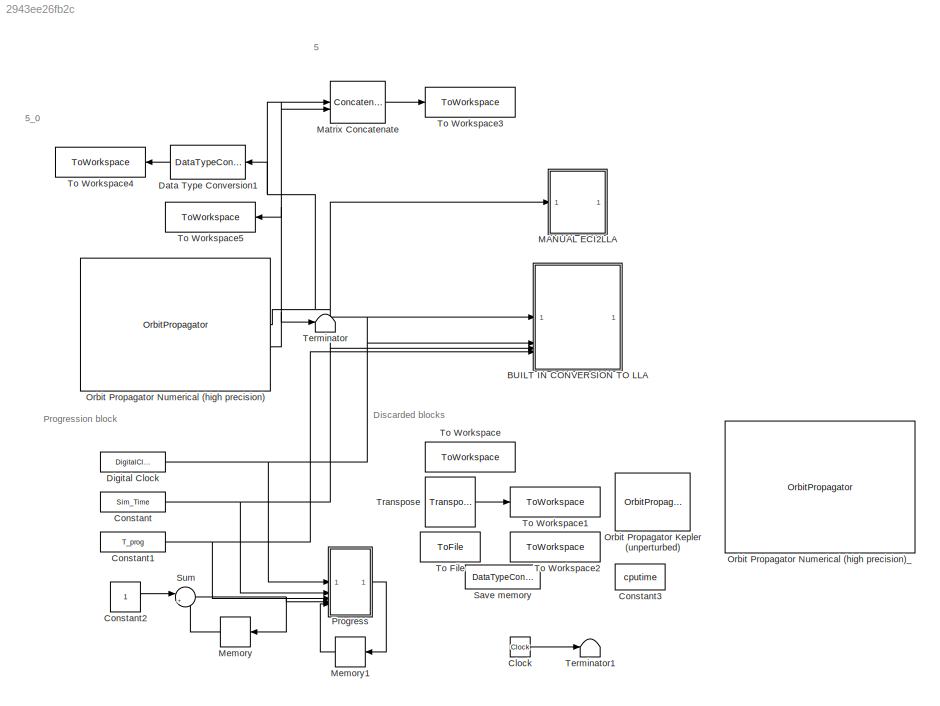
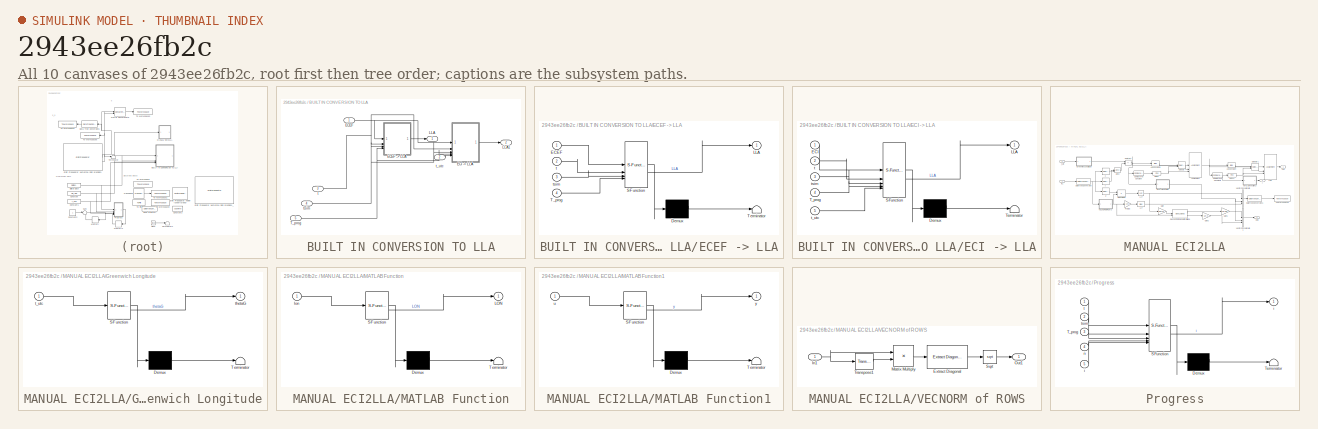
[diagram: thumbnail index - all 10 canvases of the model, root first then tree order]
MODEL slx_2943ee26fb2c
KIND model
CONFIG AbsTol = auto
CONFIG EnableMultiTasking = off
CONFIG FixedStep = SampleTime
CONFIG MaxStep = auto
CONFIG MinStep = auto
CONFIG RelTol = 1e-3
CONFIG SampleTimeConstraint = Unconstrained
CONFIG SolverName = FixedStepAuto
CONFIG StartTime = 0
CONFIG StopTime = Sim_Time
WORKSPACE source: mxarray member
WORKSPACE SampleTime = 30
WORKSPACE Sim_Time = 31556952
WORKSPACE StartTime: datetime (value not decoded)
WORKSPACE T_prog = 3180
WORKSPACE r = [-2469229.65152 6490845.12474 5652.81038738]
WORKSPACE v = [964.527698889 350.048914206 7509.28560598]
BLOCK [SubSystem] BUILT IN CONVERSION TO LLA
  Commented = on
BLOCK [Inport] BUILT IN CONVERSION TO LLA/ECEF
BLOCK [SubSystem] BUILT IN CONVERSION TO LLA/ECEF -> LLA
  Commented = on
  ErrorFcn = Stateflow.Translate.translate
  LibrarySourceBlock = simulink/User-Defined\nFunctions/MATLAB Function
  PermitHierarchicalResolution = ExplicitOnly
  SFBlockType = MATLAB Function
  TreatAsAtomicUnit = on
BLOCK [Demux] BUILT IN CONVERSION TO LLA/ECEF -> LLA/ Demux 
  Outputs = 1
BLOCK [S-Function] BUILT IN CONVERSION TO LLA/ECEF -> LLA/ SFunction 
  EnableBusSupport = on
  FunctionName = sf_sfun
  PortCounts = [4 2]
  SFcnIsStateOwnerBlock = off
  SFunctionDeploymentMode = off
  Tag = Stateflow S-Function 3
BLOCK [Terminator] BUILT IN CONVERSION TO LLA/ECEF -> LLA/ Terminator 
BLOCK [Inport] BUILT IN CONVERSION TO LLA/ECEF -> LLA/ECEF
BLOCK [Outport] BUILT IN CONVERSION TO LLA/ECEF -> LLA/LLA
BLOCK [Inport] BUILT IN CONVERSION TO LLA/ECEF -> LLA/T_prog
  Port = 4
BLOCK [Inport] BUILT IN CONVERSION TO LLA/ECEF -> LLA/t
  Port = 2
BLOCK [Inport] BUILT IN CONVERSION TO LLA/ECEF -> LLA/tsim
  Port = 3
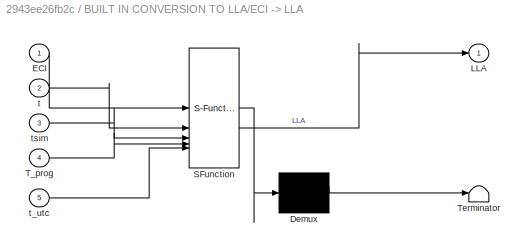
BLOCK [SubSystem] BUILT IN CONVERSION TO LLA/ECI -> LLA
  Commented = on
  ErrorFcn = Stateflow.Translate.translate
  LibrarySourceBlock = simulink/User-Defined\nFunctions/MATLAB Function
  PermitHierarchicalResolution = ExplicitOnly
  SFBlockType = MATLAB Function
  TreatAsAtomicUnit = on
BLOCK [Demux] BUILT IN CONVERSION TO LLA/ECI -> LLA/ Demux 
  Outputs = 1
BLOCK [S-Function] BUILT IN CONVERSION TO LLA/ECI -> LLA/ SFunction 
  EnableBusSupport = on
  FunctionName = sf_sfun
  PortCounts = [5 2]
  SFcnIsStateOwnerBlock = off
  SFunctionDeploymentMode = off
  Tag = Stateflow S-Function 1
BLOCK [Terminator] BUILT IN CONVERSION TO LLA/ECI -> LLA/ Terminator 
BLOCK [Inport] BUILT IN CONVERSION TO LLA/ECI -> LLA/ECI
BLOCK [Outport] BUILT IN CONVERSION TO LLA/ECI -> LLA/LLA
BLOCK [Inport] BUILT IN CONVERSION TO LLA/ECI -> LLA/T_prog
  Port = 4
BLOCK [Inport] BUILT IN CONVERSION TO LLA/ECI -> LLA/t
  Port = 2
BLOCK [Inport] BUILT IN CONVERSION TO LLA/ECI -> LLA/t_utc
  Port = 5
BLOCK [Inport] BUILT IN CONVERSION TO LLA/ECI -> LLA/tsim
  Port = 3
BLOCK [Outport] BUILT IN CONVERSION TO LLA/LLA
BLOCK [Outport] BUILT IN CONVERSION TO LLA/LLA1
  Port = 2
BLOCK [Inport] BUILT IN CONVERSION TO LLA/T_prog
  Port = 5
BLOCK [Inport] BUILT IN CONVERSION TO LLA/t
  Port = 3
BLOCK [Inport] BUILT IN CONVERSION TO LLA/t_utc
  Port = 2
BLOCK [Inport] BUILT IN CONVERSION TO LLA/tsim
  Port = 4
BLOCK [Clock] Clock
  Commented = on
BLOCK [Constant] Constant
  Value = Sim_Time
BLOCK [Constant] Constant1
  Value = T_prog
BLOCK [Constant] Constant2
BLOCK [Constant] Constant3
  Commented = on
  Value = cputime
BLOCK [DataTypeConversion] Data Type Conversion1
  OutDataTypeStr = single
  RndMeth = Round
  SaturateOnIntegerOverflow = off
BLOCK [DigitalClock] Digital Clock
  SampleTime = T_prog
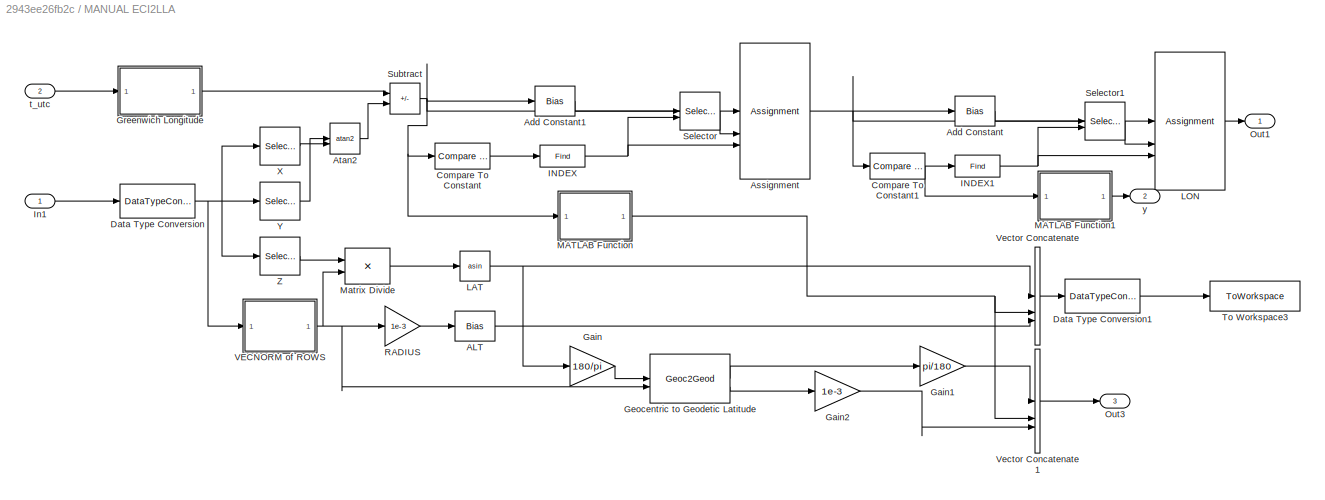
BLOCK [SubSystem] MANUAL ECI2LLA
  Commented = on
BLOCK [Bias] MANUAL ECI2LLA/ALT
  Bias = -6371
  Commented = on
  SaturateOnIntegerOverflow = off
BLOCK [Bias] MANUAL ECI2LLA/Add Constant
  Bias = 2*pi
  Commented = on
  SaturateOnIntegerOverflow = off
BLOCK [Bias] MANUAL ECI2LLA/Add Constant1
  Bias = -2*pi
  Commented = on
  SaturateOnIntegerOverflow = off
BLOCK [Assignment] MANUAL ECI2LLA/Assignment
  Commented = on
  DiagnosticForDimensions = Warning
  IndexOptions = Index vector (port)
  Indices = 1
  OutputSizes = 1
  RuntimeRangeChecks = on
BLOCK [Trigonometry] MANUAL ECI2LLA/Atan2
  Commented = on
  Operator = atan2
BLOCK [Reference] MANUAL ECI2LLA/Compare To Constant  REF=simulink/Logic and Bit
Operations/Compare
To Constant
  Commented = on
  SourceBlock = simulink/Logic and Bit\nOperations/Compare\nTo Constant
  SourceType = Compare To Constant
BLOCK [Reference] MANUAL ECI2LLA/Compare To Constant1  REF=simulink/Logic and Bit
Operations/Compare
To Constant
  Commented = on
  SourceBlock = simulink/Logic and Bit\nOperations/Compare\nTo Constant
  SourceType = Compare To Constant
BLOCK [DataTypeConversion] MANUAL ECI2LLA/Data Type Conversion
  Commented = on
  OutDataTypeStr = single
  RndMeth = Round
  SaturateOnIntegerOverflow = off
BLOCK [DataTypeConversion] MANUAL ECI2LLA/Data Type Conversion1
  Commented = on
  OutDataTypeStr = single
  RndMeth = Floor
  SaturateOnIntegerOverflow = off
BLOCK [Gain] MANUAL ECI2LLA/Gain
  Commented = on
  Gain = 180/pi
BLOCK [Gain] MANUAL ECI2LLA/Gain1
  Commented = on
  Gain = pi/180
BLOCK [Gain] MANUAL ECI2LLA/Gain2
  Commented = on
  Gain = 1e-3
BLOCK [Geoc2Geod] MANUAL ECI2LLA/Geocentric to Geodetic Latitude
  Commented = on
  outputAltitude = on
BLOCK [SubSystem] MANUAL ECI2LLA/Greenwich Longitude
  Commented = on
  ErrorFcn = Stateflow.Translate.translate
  LibrarySourceBlock = simulink/User-Defined\nFunctions/MATLAB Function
  PermitHierarchicalResolution = ExplicitOnly
  SFBlockType = MATLAB Function
  TreatAsAtomicUnit = on
BLOCK [Demux] MANUAL ECI2LLA/Greenwich Longitude/ Demux 
  Outputs = 1
BLOCK [S-Function] MANUAL ECI2LLA/Greenwich Longitude/ SFunction 
  EnableBusSupport = on
  FunctionName = sf_sfun
  PortCounts = [1 2]
  SFcnIsStateOwnerBlock = off
  SFunctionDeploymentMode = off
  Tag = Stateflow S-Function 4
BLOCK [Terminator] MANUAL ECI2LLA/Greenwich Longitude/ Terminator 
BLOCK [Inport] MANUAL ECI2LLA/Greenwich Longitude/t_utc
BLOCK [Outport] MANUAL ECI2LLA/Greenwich Longitude/thetaG
BLOCK [Find] MANUAL ECI2LLA/INDEX
  Commented = on
  NumberOfInputDimensions = 1
BLOCK [Find] MANUAL ECI2LLA/INDEX1
  Commented = on
  NumberOfInputDimensions = 1
BLOCK [Inport] MANUAL ECI2LLA/In1
BLOCK [Trigonometry] MANUAL ECI2LLA/LAT
  Commented = on
  Operator = asin
BLOCK [Assignment] MANUAL ECI2LLA/LON
  Commented = on
  DiagnosticForDimensions = Warning
  IndexOptions = Index vector (port)
  Indices = 1
  OutputSizes = 1
  RuntimeRangeChecks = on
BLOCK [SubSystem] MANUAL ECI2LLA/MATLAB Function
  Commented = on
  ErrorFcn = Stateflow.Translate.translate
  LibrarySourceBlock = simulink/User-Defined\nFunctions/MATLAB Function
  PermitHierarchicalResolution = ExplicitOnly
  SFBlockType = MATLAB Function
  TreatAsAtomicUnit = on
BLOCK [Demux] MANUAL ECI2LLA/MATLAB Function/ Demux 
  Outputs = 1
BLOCK [S-Function] MANUAL ECI2LLA/MATLAB Function/ SFunction 
  EnableBusSupport = on
  FunctionName = sf_sfun
  PortCounts = [1 2]
  SFcnIsStateOwnerBlock = off
  SFunctionDeploymentMode = off
  Tag = Stateflow S-Function 5
BLOCK [Terminator] MANUAL ECI2LLA/MATLAB Function/ Terminator 
BLOCK [Outport] MANUAL ECI2LLA/MATLAB Function/LON
BLOCK [Inport] MANUAL ECI2LLA/MATLAB Function/lon
BLOCK [SubSystem] MANUAL ECI2LLA/MATLAB Function1
  Commented = on
  ErrorFcn = Stateflow.Translate.translate
  LibrarySourceBlock = simulink/User-Defined\nFunctions/MATLAB Function
  PermitHierarchicalResolution = ExplicitOnly
  SFBlockType = MATLAB Function
  TreatAsAtomicUnit = on
BLOCK [Demux] MANUAL ECI2LLA/MATLAB Function1/ Demux 
  Outputs = 1
BLOCK [S-Function] MANUAL ECI2LLA/MATLAB Function1/ SFunction 
  EnableBusSupport = on
  FunctionName = sf_sfun
  PortCounts = [1 2]
  SFcnIsStateOwnerBlock = off
  SFunctionDeploymentMode = off
  Tag = Stateflow S-Function 6
BLOCK [Terminator] MANUAL ECI2LLA/MATLAB Function1/ Terminator 
BLOCK [Inport] MANUAL ECI2LLA/MATLAB Function1/u
BLOCK [Outport] MANUAL ECI2LLA/MATLAB Function1/y
BLOCK [Product] MANUAL ECI2LLA/Matrix Divide
  Commented = on
  Inputs = */
BLOCK [Outport] MANUAL ECI2LLA/Out1
BLOCK [Outport] MANUAL ECI2LLA/Out3
  Port = 3
BLOCK [Gain] MANUAL ECI2LLA/RADIUS
  Commented = on
  Gain = 1e-3
BLOCK [Selector] MANUAL ECI2LLA/Selector
  Commented = on
  IndexOptions = Index vector (port)
  Indices = [1 3]
  OutputSizes = 1
  RuntimeRangeChecks = on
BLOCK [Selector] MANUAL ECI2LLA/Selector1
  Commented = on
  IndexOptions = Index vector (port)
  Indices = [1 3]
  OutputSizes = 1
  RuntimeRangeChecks = on
BLOCK [Sum] MANUAL ECI2LLA/Subtract
  Commented = on
  IconShape = rectangular
  Inputs = -+
BLOCK [ToWorkspace] MANUAL ECI2LLA/To Workspace3
  Commented = on
  FixptAsFi = on
  MaxDataPoints = inf
  SampleTime = -1
  SaveFormat = Timeseries
  VariableName = LLA
BLOCK [SubSystem] MANUAL ECI2LLA/VECNORM of ROWS
  Commented = on
BLOCK [Reference] MANUAL ECI2LLA/VECNORM of ROWS/Extract Diagonal  REF=matrix_library/Extract Diagonal
  LibrarySourceBlock = simulink/Matrix\nOperations/Extract Diagonal
  SourceBlock = matrix_library/Extract Diagonal
  SourceType = Extract Diagonal
BLOCK [Inport] MANUAL ECI2LLA/VECNORM of ROWS/In1
BLOCK [Product] MANUAL ECI2LLA/VECNORM of ROWS/Matrix Multiply
  Multiplication = Matrix(*)
BLOCK [Outport] MANUAL ECI2LLA/VECNORM of ROWS/Out1
BLOCK [Sqrt] MANUAL ECI2LLA/VECNORM of ROWS/Sqrt
BLOCK [Reference] MANUAL ECI2LLA/VECNORM of ROWS/Transpose1  REF=matrix_library/Transpose
  LibrarySourceBlock = simulink/Matrix\nOperations/Transpose
  SourceBlock = matrix_library/Transpose
  SourceType = Transpose
BLOCK [Concatenate] MANUAL ECI2LLA/Vector Concatenate
  Commented = on
  ConcatenateDimension = 2
  Mode = Multidimensional array
  NumInputs = 3
BLOCK [Concatenate] MANUAL ECI2LLA/Vector Concatenate1
  Commented = on
  ConcatenateDimension = 2
  Mode = Multidimensional array
  NumInputs = 3
BLOCK [Selector] MANUAL ECI2LLA/X
  Commented = on
  IndexOptions = Select all,Index vector (dialog)
  Indices = [1 3],1
  InputPortWidth = 3
  NumberOfDimensions = 2
  OutputSizes = 1,1
  RuntimeRangeChecks = on
BLOCK [Selector] MANUAL ECI2LLA/Y
  Commented = on
  IndexOptions = Select all,Index vector (dialog)
  Indices = [1 3],2
  InputPortWidth = 3
  NumberOfDimensions = 2
  OutputSizes = 1,1
  RuntimeRangeChecks = on
BLOCK [Selector] MANUAL ECI2LLA/Z
  Commented = on
  IndexOptions = Select all,Index vector (dialog)
  Indices = [1 3],3
  InputPortWidth = 3
  NumberOfDimensions = 2
  OutputSizes = 1,1
  RuntimeRangeChecks = on
BLOCK [Inport] MANUAL ECI2LLA/t_utc
  Port = 2
BLOCK [Outport] MANUAL ECI2LLA/y
  Port = 2
BLOCK [Concatenate] Matrix Concatenate
  Commented = on
  ConcatenateDimension = 2
  Mode = Multidimensional array
BLOCK [Memory] Memory
BLOCK [Memory] Memory1
BLOCK [OrbitPropagator] Orbit Propagator Kepler (unperturbed)
  Commented = on
  customJ2 = 1.0826269e-03
  customMu = 4.305e13
  customOmega = 4.06125949e-3
  customR = 3396200
  fixedPosition = [-4142689.0 -2676864.7 -4669861.6]
  fixedVelocity = [1452.7 -6720.7 2568.1]
  inertialPosition = r
  inertialVelocity = v
  startDate = datevec(StartTime)
  stateFormatKep = ICRF state vector
  timeFormat = Gregorian
BLOCK [OrbitPropagator] Orbit Propagator Numerical (high precision)
  customJ2 = 1.0826269e-03
  customMu = 4.305e13
  customOmega = 4.06125949e-3
  customR = 3396200
  dateOut = off
  fixedPosition = r
  fixedVelocity = v
  gravityModel = Point-mass
  inertialPosition = r(:,:,1)
  inertialVelocity = v(:,:,1)
  outportFrame = Fixed-frame
  propagator = Numerical (high precision)
  startDate = datevec(StartTime)
  stateFormatKep = ICRF state vector
  stateFormatNum = ICRF state vector
  timeFormat = Gregorian
  useEOPs = off
BLOCK [OrbitPropagator] Orbit Propagator Numerical (high precision)_
  Commented = on
  customJ2 = 1.0826269e-03
  customMu = 4.305e13
  customOmega = 4.06125949e-3
  customR = 3396200
  fixedPosition = r
  fixedVelocity = v
  gravityModel = Point-mass
  inertialPosition = R
  inertialVelocity = V
  outportFrame = Fixed-frame
  propagator = Numerical (high precision)
  startDate = t_UTC(k - 1,:)
  stateFormatKep = ICRF state vector
  stateFormatNum = ICRF state vector
  timeFormat = Gregorian
  useEOPs = off
BLOCK [SubSystem] Progress
  ErrorFcn = Stateflow.Translate.translate
  LibrarySourceBlock = simulink/User-Defined\nFunctions/MATLAB Function
  PermitHierarchicalResolution = ExplicitOnly
  SFBlockType = MATLAB Function
  TreatAsAtomicUnit = on
BLOCK [Demux] Progress/ Demux 
  Outputs = 1
BLOCK [S-Function] Progress/ SFunction 
  EnableBusSupport = on
  FunctionName = sf_sfun
  PortCounts = [5 2]
  SFcnIsStateOwnerBlock = off
  SFunctionDeploymentMode = off
  Tag = Stateflow S-Function 2
BLOCK [Terminator] Progress/ Terminator 
BLOCK [Inport] Progress/T_prog
  Port = 3
BLOCK [Outport] Progress/i
BLOCK [Inport] Progress/i 
  Port = 5
BLOCK [Inport] Progress/n
  Port = 4
BLOCK [Inport] Progress/t
BLOCK [Inport] Progress/tsim
  Port = 2
BLOCK [DataTypeConversion] Save memory
  Commented = on
  OutDataTypeStr = single
  RndMeth = Round
  SaturateOnIntegerOverflow = off
BLOCK [Sum] Sum
  Inputs = |++
BLOCK [Terminator] Terminator
BLOCK [Terminator] Terminator1
  Commented = on
BLOCK [ToFile] To File
  Commented = on
  Filename = LLA.mat
  MatrixName = LLA
  SaveFormat = Timeseries
BLOCK [ToWorkspace] To Workspace
  Commented = on
  FixptAsFi = on
  MaxDataPoints = inf
  SampleTime = -1
  VariableName = ECEF
BLOCK [ToWorkspace] To Workspace1
  Commented = on
  FixptAsFi = on
  MaxDataPoints = inf
  SampleTime = -1
  Save2DSignal = 2-D array (concatenate along first dimension)
  VariableName = Time
BLOCK [ToWorkspace] To Workspace2
  Commented = on
  FixptAsFi = on
  MaxDataPoints = inf
  SampleTime = -1
  VariableName = LLA
BLOCK [ToWorkspace] To Workspace3
  Commented = on
  FixptAsFi = on
  MaxDataPoints = inf
  SampleTime = -1
  VariableName = ECI
BLOCK [ToWorkspace] To Workspace4
  FixptAsFi = on
  MaxDataPoints = inf
  SampleTime = -1
  VariableName = ECI
BLOCK [ToWorkspace] To Workspace5
  Commented = on
  FixptAsFi = on
  MaxDataPoints = inf
  SampleTime = -1
  SaveFormat = Timeseries
  VariableName = V
BLOCK [Reference] Transpose  REF=matrix_library/Transpose
  Commented = on
  LibrarySourceBlock = simulink/Matrix\nOperations/Transpose
  SourceBlock = matrix_library/Transpose
  SourceType = Transpose
ANNOTATION (root): 5
ANNOTATION (root): 5_0
ANNOTATION (root): Discarded blocks
ANNOTATION (root): Progression block
LINE BUILT IN CONVERSION TO LLA/ECEF -> LLA:1 -> BUILT IN CONVERSION TO LLA/LLA:1
NET BUILT IN CONVERSION TO LLA/ECEF:1 -> BUILT IN CONVERSION TO LLA/ECEF -> LLA:1, BUILT IN CONVERSION TO LLA/ECI -> LLA:1
LINE BUILT IN CONVERSION TO LLA/ECI -> LLA:1 -> BUILT IN CONVERSION TO LLA/LLA1:1
NET BUILT IN CONVERSION TO LLA/T_prog:1 -> BUILT IN CONVERSION TO LLA/ECEF -> LLA:4, BUILT IN CONVERSION TO LLA/ECI -> LLA:4
NET BUILT IN CONVERSION TO LLA/t:1 -> BUILT IN CONVERSION TO LLA/ECEF -> LLA:2, BUILT IN CONVERSION TO LLA/ECI -> LLA:2
LINE BUILT IN CONVERSION TO LLA/t_utc:1 -> BUILT IN CONVERSION TO LLA/ECI -> LLA:5
NET BUILT IN CONVERSION TO LLA/tsim:1 -> BUILT IN CONVERSION TO LLA/ECEF -> LLA:3, BUILT IN CONVERSION TO LLA/ECI -> LLA:3
LINE Clock:1 -> Terminator1:1
NET Constant1:1 -> BUILT IN CONVERSION TO LLA:5, Progress:3
LINE Constant2:1 -> Sum:1
NET Constant:1 -> BUILT IN CONVERSION TO LLA:4, Progress:2
LINE Data Type Conversion1:1 -> To Workspace4:1
NET Digital Clock:1 -> BUILT IN CONVERSION TO LLA:3, Progress:1
LINE MANUAL ECI2LLA/ALT:1 -> MANUAL ECI2LLA/Vector Concatenate:3
LINE MANUAL ECI2LLA/Add Constant1:1 -> MANUAL ECI2LLA/Selector:1
LINE MANUAL ECI2LLA/Add Constant:1 -> MANUAL ECI2LLA/Selector1:1
NET MANUAL ECI2LLA/Assignment:1 -> MANUAL ECI2LLA/Add Constant:1, MANUAL ECI2LLA/Compare To Constant1:1, MANUAL ECI2LLA/LON:1
LINE MANUAL ECI2LLA/Atan2:1 -> MANUAL ECI2LLA/Subtract:2
NET MANUAL ECI2LLA/Compare To Constant1:1 -> MANUAL ECI2LLA/INDEX1:1, MANUAL ECI2LLA/MATLAB Function1:1
LINE MANUAL ECI2LLA/Compare To Constant:1 -> MANUAL ECI2LLA/INDEX:1
LINE MANUAL ECI2LLA/Data Type Conversion1:1 -> MANUAL ECI2LLA/To Workspace3:1
NET MANUAL ECI2LLA/Data Type Conversion:1 -> MANUAL ECI2LLA/VECNORM of ROWS:1, MANUAL ECI2LLA/X:1, MANUAL ECI2LLA/Y:1, MANUAL ECI2LLA/Z:1
LINE MANUAL ECI2LLA/Gain1:1 -> MANUAL ECI2LLA/Vector Concatenate1:1
LINE MANUAL ECI2LLA/Gain2:1 -> MANUAL ECI2LLA/Vector Concatenate1:3
LINE MANUAL ECI2LLA/Gain:1 -> MANUAL ECI2LLA/Geocentric to Geodetic Latitude:1
LINE MANUAL ECI2LLA/Geocentric to Geodetic Latitude:1 -> MANUAL ECI2LLA/Gain1:1
LINE MANUAL ECI2LLA/Geocentric to Geodetic Latitude:2 -> MANUAL ECI2LLA/Gain2:1
LINE MANUAL ECI2LLA/Greenwich Longitude:1 -> MANUAL ECI2LLA/Subtract:1
NET MANUAL ECI2LLA/INDEX1:1 -> MANUAL ECI2LLA/LON:3, MANUAL ECI2LLA/Selector1:2
NET MANUAL ECI2LLA/INDEX:1 -> MANUAL ECI2LLA/Assignment:3, MANUAL ECI2LLA/Selector:2
LINE MANUAL ECI2LLA/In1:1 -> MANUAL ECI2LLA/Data Type Conversion:1
NET MANUAL ECI2LLA/LAT:1 -> MANUAL ECI2LLA/Gain:1, MANUAL ECI2LLA/Vector Concatenate:1
LINE MANUAL ECI2LLA/LON:1 -> MANUAL ECI2LLA/Out1:1
LINE MANUAL ECI2LLA/MATLAB Function1:1 -> MANUAL ECI2LLA/y:1
NET MANUAL ECI2LLA/MATLAB Function:1 -> MANUAL ECI2LLA/Vector Concatenate1:2, MANUAL ECI2LLA/Vector Concatenate:2
LINE MANUAL ECI2LLA/Matrix Divide:1 -> MANUAL ECI2LLA/LAT:1
LINE MANUAL ECI2LLA/RADIUS:1 -> MANUAL ECI2LLA/ALT:1
LINE MANUAL ECI2LLA/Selector1:1 -> MANUAL ECI2LLA/LON:2
LINE MANUAL ECI2LLA/Selector:1 -> MANUAL ECI2LLA/Assignment:2
NET MANUAL ECI2LLA/Subtract:1 -> MANUAL ECI2LLA/Add Constant1:1, MANUAL ECI2LLA/Assignment:1, MANUAL ECI2LLA/Compare To Constant:1, MANUAL ECI2LLA/MATLAB Function:1
LINE MANUAL ECI2LLA/VECNORM of ROWS/Extract Diagonal:1 -> MANUAL ECI2LLA/VECNORM of ROWS/Sqrt:1
NET MANUAL ECI2LLA/VECNORM of ROWS/In1:1 -> MANUAL ECI2LLA/VECNORM of ROWS/Matrix Multiply:1, MANUAL ECI2LLA/VECNORM of ROWS/Transpose1:1
LINE MANUAL ECI2LLA/VECNORM of ROWS/Matrix Multiply:1 -> MANUAL ECI2LLA/VECNORM of ROWS/Extract Diagonal:1
LINE MANUAL ECI2LLA/VECNORM of ROWS/Sqrt:1 -> MANUAL ECI2LLA/VECNORM of ROWS/Out1:1
LINE MANUAL ECI2LLA/VECNORM of ROWS/Transpose1:1 -> MANUAL ECI2LLA/VECNORM of ROWS/Matrix Multiply:2
NET MANUAL ECI2LLA/VECNORM of ROWS:1 -> MANUAL ECI2LLA/Geocentric to Geodetic Latitude:2, MANUAL ECI2LLA/Matrix Divide:2, MANUAL ECI2LLA/RADIUS:1
LINE MANUAL ECI2LLA/Vector Concatenate1:1 -> MANUAL ECI2LLA/Out3:1
LINE MANUAL ECI2LLA/Vector Concatenate:1 -> MANUAL ECI2LLA/Data Type Conversion1:1
LINE MANUAL ECI2LLA/X:1 -> MANUAL ECI2LLA/Atan2:2
LINE MANUAL ECI2LLA/Y:1 -> MANUAL ECI2LLA/Atan2:1
LINE MANUAL ECI2LLA/Z:1 -> MANUAL ECI2LLA/Matrix Divide:1
LINE MANUAL ECI2LLA/t_utc:1 -> MANUAL ECI2LLA/Greenwich Longitude:1
LINE Matrix Concatenate:1 -> To Workspace3:1
LINE Memory1:1 -> Progress:5
LINE Memory:1 -> Sum:2
NET Orbit Propagator Numerical (high precision):1 -> BUILT IN CONVERSION TO LLA:1, Data Type Conversion1:1, MANUAL ECI2LLA:1, Matrix Concatenate:1
NET Orbit Propagator Numerical (high precision):2 -> Matrix Concatenate:2, Terminator:1, To Workspace5:1
LINE Progress:1 -> Memory1:1
NET Sum:1 -> Memory:1, Progress:4
LINE Transpose:1 -> To Workspace1:1
note: NET lines group one-source signal fan-out (src -> all destinations, sorted); 1:1 wires keep LINE
CHART BUILT IN CONVERSION TO LLA/ECI -> LLA states=1 transitions=1
  STATE_LABEL 'eML_blk_kernel()'
  STATE_LABEL "SCRIPT:\nfunction LLA = postproc(ECI,t,tsim,T_prog,t_utc)\ncoder.extrinsic('eci2lla','fprintf')\n\n% fprintf('\\n%.0f %.0f; %.0f %.0f\\n',size(ECI),size(t_utc'))\nsz = size(ECI,2);\nif sz == 1\n    LLA = single(zeros(size(ECI'))); % Define the output type for the extrinsic call.\n    LLA = single(eci2lla(ECI',t_utc')); % [deg,deg, m]\n    \n%     fprintf('\\nyoo\\n')\nelse\n    sz = size(ECI,1);\n    t_UTC = zeros...<+586ch>"
CHART Progress states=1 transitions=1
  STATE_LABEL 'eML_blk_kernel()'
  STATE_LABEL "SCRIPT:\nfunction i = prog(t,tsim,T_prog,n,i)\ncoder.extrinsic('fprintf')\n\npersistent firstTime\n\nif isempty(firstTime)\n    firstTime = false;\n    fprintf(' Simulation progress:         ')\nend\n\nprog = 100*t/tsim;\n\nif i == 0 || abs(i - n) > T_prog\n    i = n;\n    fprintf('<path>%7.3f%%',prog)\nend\n\n% if tsim - t < T_prog\n%     fprintf('<path>%7.3f%%',100)\n% end\n\nend"
CHART BUILT IN CONVERSION TO LLA/ECEF -> LLA states=1 transitions=1
  STATE_LABEL 'eML_blk_kernel()'
  STATE_LABEL "SCRIPT:\nfunction LLA = postproc(ECEF,t,tsim,T_prog)\ncoder.extrinsic('ecef2lla','fprintf')\n\nsz = size(ECEF,2);\nif sz == 1\n    LLA = single(zeros(size(ECEF'))); % Define the output type for the extrinsic call.\n    LLA = single(ecef2lla(ECEF','wgs84')); % [deg,deg, m]\n    \nelse\n    LLA = single(zeros(size(ECEF))); % Define the output type for the extrinsic call.\n    LLA = single(ecef2lla(ECEF,'wgs84'...<+426ch>"
CHART MANUAL ECI2LLA/Greenwich Longitude states=1 transitions=1
  STATE_LABEL 'eML_blk_kernel()'
  STATE_LABEL 'SCRIPT:\nfunction thetaG = LongG(t_utc)\n% Long Greenwhich at t0\n% INPUT:\n%   t_utc0 : 1x6 initial time vector [YY,MM,DD,hh,mm,ss]\n% OUTPUT:\n%   tG0    : scalar, [rad]  \n\nJ0 = 367*t_utc(1)-fix(7/4*(t_utc(1)+fix((t_utc(2)+9)/12)))+fix(275/9*t_utc(2))+t_utc(3)+1721013.5;\nT0 = (J0-2451545)/36525;\nlonG0 = mod(100.4606184 + 36000.77004 * T0 + 0.000387933 * T0^2 - 2.583e-8 * T0^3,360); % [deg]\nlonG  = mod...<+119ch>'
CHART MANUAL ECI2LLA/MATLAB Function states=1 transitions=1
  STATE_LABEL 'eML_blk_kernel()'
  STATE_LABEL 'SCRIPT:\nfunction LON = FIND(lon)\n\nI = find(lon > pi);\nlon(I)  = lon(I) - 2*pi;\n\nI = find(lon < -pi);\nlon(I)  = lon(I) + 2*pi;\n\nLON = lon;\n\nend\n'
CHART MANUAL ECI2LLA/MATLAB Function1 states=1 transitions=1
  STATE_LABEL 'eML_blk_kernel()'
  STATE_LABEL 'SCRIPT:\nfunction y = FIND(u)\n\ny = find(u);\n\nend\n'
CHART  states=0 transitions=0
CHART  states=0 transitions=0
CHART  states=0 transitions=0
CHART  states=0 transitions=0
CHART  states=0 transitions=0
CHART  states=0 transitions=0
note: 2 file-system paths scrubbed to <path> (not preserved elsewhere — flat text is the only slx artifact)
